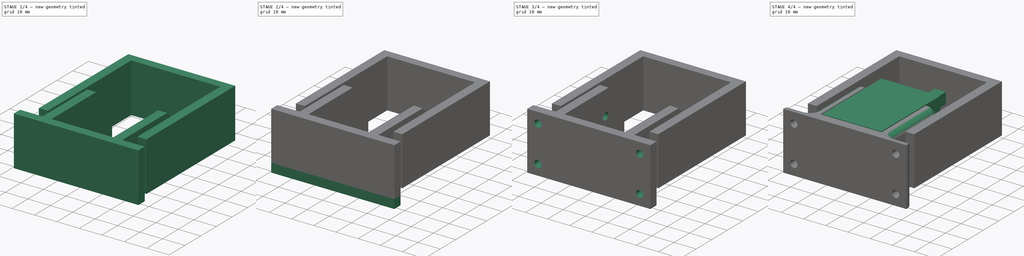
[diagram: build sequence overview — one tinted view per stage of 4, left to right]
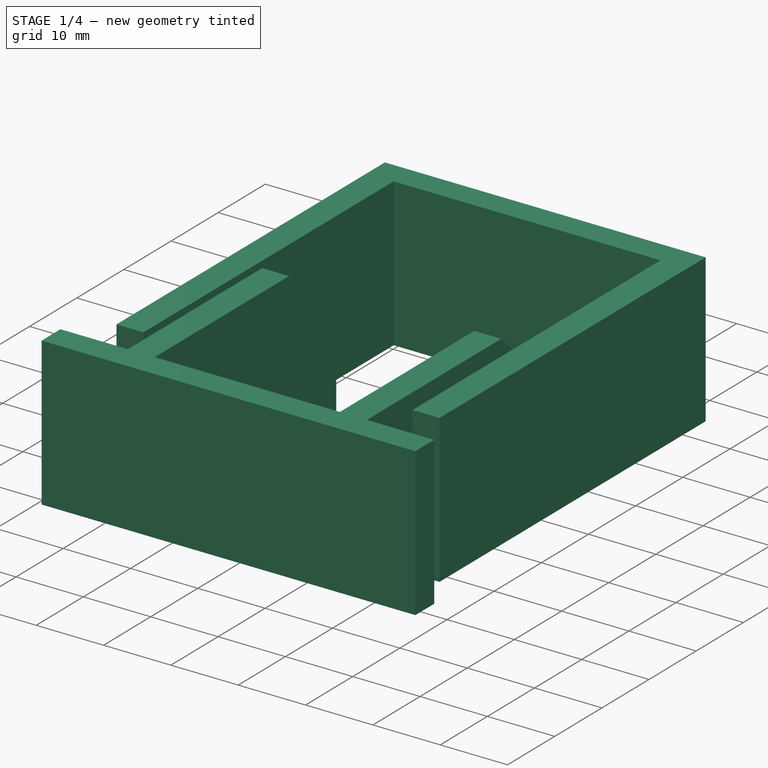
[diagram: stage 1 of 4 — iso view after this stage's code; geometry added in this stage tinted green]
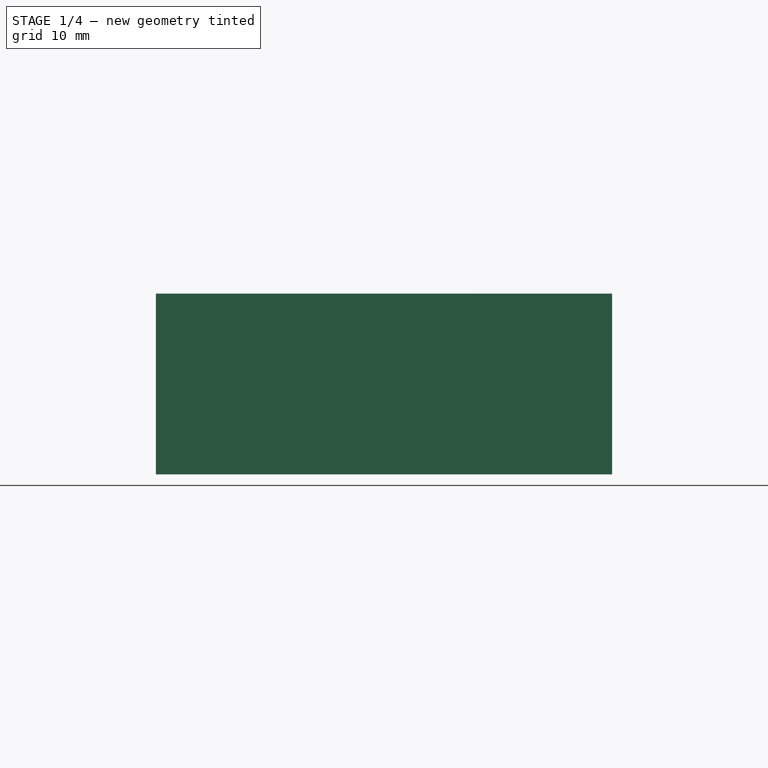
[diagram: stage 1 of 4 — front view after this stage's code; geometry added in this stage tinted green]
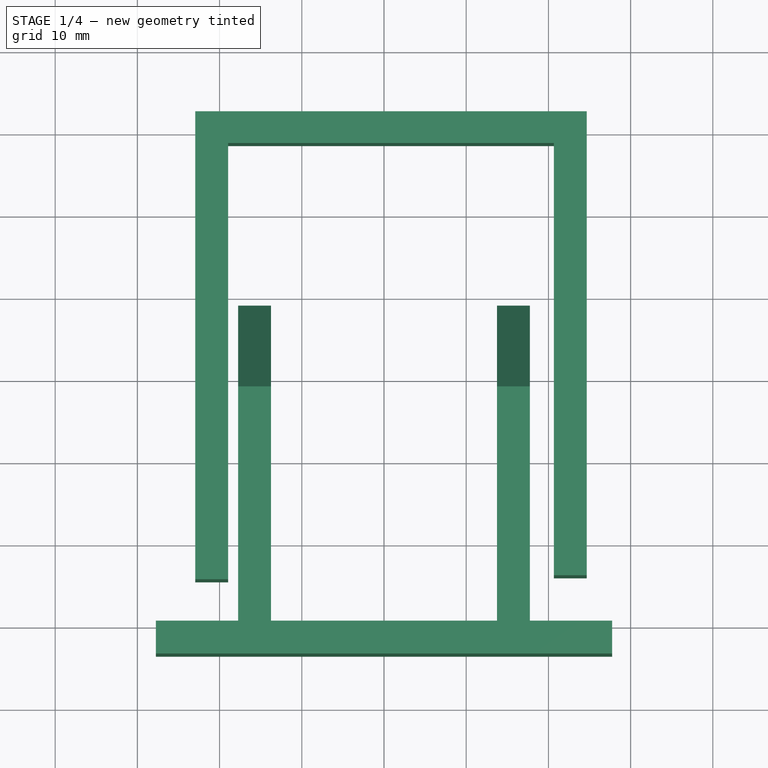
[diagram: stage 1 of 4 — top view after this stage's code; geometry added in this stage tinted green]
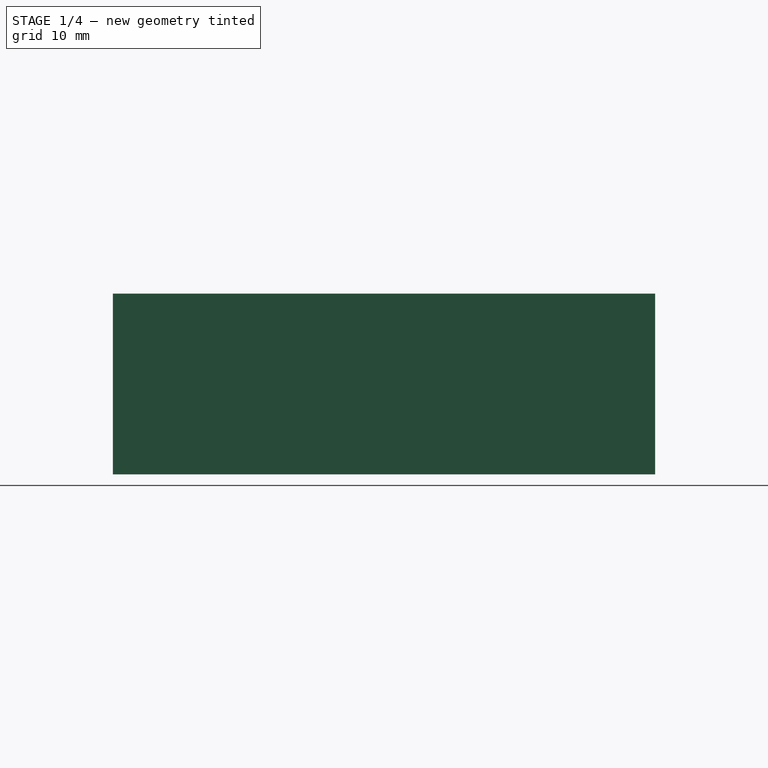
[diagram: stage 1 of 4 — right view after this stage's code; geometry added in this stage tinted green]
FCSTD DOCUMENT  (FreeCAD 0.19R22756 (Git))
Label: system-solenoid
License: All rights reserved
LicenseURL: http://en.wikipedia.org/wiki/All_rights_reserved
objects: Sketcher::SketchObject×7, PartDesign::Pad×7, PartDesign::Pocket×3, PartDesign::Body×3, Spreadsheet::Sheet×1, PartDesign::Fillet×1
note: 32 computed .brp shape members not serialized (recipe doc carries the construction recipe); baked Part::Feature solids carry a one-line shape summary decoded from their .brp

FEATURE [Sketcher::SketchObject] Sketch002
  MapMode = 5
  Support = -> [XY_Plane001]
  expr: Constraints[39] = Spreadsheet.solenoid_length / 2 + Spreadsheet.holder_margin
  expr: Constraints[35] = Spreadsheet.solenoid_length + Spreadsheet.holder_margin
  expr: Constraints[32] = Spreadsheet.holder_surface_width
  expr: Constraints[21] = Spreadsheet.holder_thickness
  expr: Constraints[30] = Spreadsheet.solenoid_width + Spreadsheet.holder_margin * 2
  sketch-geometry (14):
    g0: LineSegment StartX=-13.75 StartY=19 StartZ=0 EndX=-13.75 EndY=-19.5 EndZ=0
    g1: LineSegment StartX=-13.75 StartY=-19.5 StartZ=0 EndX=13.75 EndY=-19.5 EndZ=0
    g2: LineSegment StartX=13.75 StartY=-19.5 StartZ=0 EndX=13.75 EndY=19 EndZ=0
    g3: LineSegment StartX=13.75 StartY=19 StartZ=0 EndX=17.75 EndY=19 EndZ=0
    g4: LineSegment StartX=17.75 StartY=19 StartZ=0 EndX=17.75 EndY=-19.5 EndZ=0
    g5: LineSegment StartX=17.75 StartY=-19.5 StartZ=0 EndX=27.75 EndY=-19.5 EndZ=0
    g6: LineSegment StartX=27.75 StartY=-19.5 StartZ=0 EndX=27.75 EndY=-23.5 EndZ=0
    g7: LineSegment StartX=27.75 StartY=-23.5 StartZ=0 EndX=-27.75 EndY=-23.5 EndZ=0
    g8: LineSegment StartX=-27.75 StartY=-23.5 StartZ=0 EndX=-27.75 EndY=-19.5 EndZ=0
    g9: LineSegment StartX=-27.75 StartY=-19.5 StartZ=0 EndX=-17.75 EndY=-19.5 EndZ=0
    g10: LineSegment StartX=-17.75 StartY=-19.5 StartZ=0 EndX=-17.75 EndY=19 EndZ=0
    g11: LineSegment StartX=-17.75 StartY=19 StartZ=0 EndX=-13.75 EndY=19 EndZ=0
    g12: LineSegment [constr] StartX=-7.58307 StartY=-19.5 StartZ=0 EndX=-7.58307 EndY=-23.5 EndZ=0
    g13: LineSegment [constr] StartX=5.2175 StartY=-19.5 StartZ=0 EndX=5.2175 EndY=0 EndZ=0
  constraints (41):
    c: Vertical(g0)
    c: Coincident(g0,g1)
    c: Coincident(g1,g2)
    c: Vertical(g2)
    c: Coincident(g2,g3)
    c: Coincident(g3,g4)
    c: Vertical(g4)
    c: Horizontal(g5)
    c: Coincident(g5,g6)
    c: Vertical(g6)
    c: Coincident(g6,g7)
    c: Horizontal(g7)
    c: Coincident(g7,g8)
    c: Vertical(g8)
    c: Coincident(g8,g9)
    c: Vertical(g10)
    c: Coincident(g10,g11)
    c: Coincident(g11,g0)
    c: Horizontal(g11)
    c: Coincident(g9,g10)
    c: Coincident(g5,g4)
    c: DistanceX(g11,g11) = 4
    c: Equal(g11,g3)
    c: Equal(g11,g8)
    c: Equal(g6,g11)
    c: Horizontal(g9)
    c: PointOnObject(g12,g1)
    c: PointOnObject(g12,g7)
    c: Vertical(g12)
    c: Equal(g12,g8)
    c: DistanceX(g1,g1) = 27.5
    c: Symmetric(g0,g1,g-2)
    c: DistanceX(g9,g9) = 10
    c: Equal(g5,g9)
    c: Horizontal(g3)
    c: DistanceY(g10,g10) = 38.5
    c: Equal(g10,g2)
    c: PointOnObject(g13,g1)
    c: Vertical(g13)
    c: DistanceY(g13,g13) = 19.5
    c: PointOnObject(g13,g-1)
FEATURE [PartDesign::Pad] Pad001
  Direction = (1,1,1)
  Length = 22
  Length2 = 100
  Profile = -> Sketch002
  Type = 0
  expr: Length = Spreadsheet.solenoid_height
FEATURE [Sketcher::SketchObject] Sketch003
  ExternalGeometry = -> [Pad001]
  MapMode = 5
  Placement = pos=(17.75,0,0) rot=(0.57735,0.57735,0.57735;2.0944rad)
  Support = -> [Pad001]
  sketch-geometry (3):
    g0: LineSegment StartX=19 StartY=12 StartZ=0 EndX=9 EndY=22 EndZ=0
    g1: LineSegment StartX=9 StartY=22 StartZ=0 EndX=19 EndY=22 EndZ=0
    g2: LineSegment StartX=19 StartY=22 StartZ=0 EndX=19 EndY=12 EndZ=0
  constraints (9):
    c: Coincident(g0,g1)
    c: Horizontal(g1)
    c: Coincident(g1,g2)
    c: Vertical(g2)
    c: PointOnObject(g0,g-4)
    c: PointOnObject(g0,g-3)
    c: Coincident(g2,g0)
    c: DistanceX(g1,g1) = 10
    c: Equal(g1,g2)
FEATURE [PartDesign::Pocket] Pocket001
  BaseFeature = -> Pad001
  Length = 5
  Length2 = 100
  Profile = -> Sketch003
  Type = 1
FEATURE [PartDesign::Body] Body001  label="holder"
  Group = -> [Sketch002,Pad001,Sketch003,Pocket001,Pad002,Pad003,Pad004,Sketch007,Pocket,Sketch008,Pocket002,Fillet]
  Origin = -> Origin001
  Tip = -> Fillet
FEATURE [Sketcher::SketchObject] Sketch009
  MapMode = 5
  Support = -> [XY_Plane002]
  expr: Constraints[16] = Spreadsheet.holder_thickness
  sketch-geometry (8):
    g0: LineSegment StartX=-18.9655 StartY=-14.4582 StartZ=0 EndX=-18.9655 EndY=38.6192 EndZ=0
    g1: LineSegment StartX=-18.9655 StartY=38.6192 StartZ=0 EndX=20.6687 EndY=38.6192 EndZ=0
    g2: LineSegment StartX=20.6687 StartY=38.6192 StartZ=0 EndX=20.6687 EndY=-13.9771 EndZ=0
    g3: LineSegment StartX=20.6687 StartY=-13.9771 StartZ=0 EndX=24.6687 EndY=-13.9771 EndZ=0
    g4: LineSegment StartX=24.6687 StartY=-13.9771 StartZ=0 EndX=24.6687 EndY=42.4677 EndZ=0
    g5: LineSegment StartX=24.6687 StartY=42.4677 StartZ=0 EndX=-22.9655 EndY=42.4677 EndZ=0
    g6: LineSegment StartX=-22.9655 StartY=42.4677 StartZ=0 EndX=-22.9655 EndY=-14.4582 EndZ=0
    g7: LineSegment StartX=-22.9655 StartY=-14.4582 StartZ=0 EndX=-18.9655 EndY=-14.4582 EndZ=0
  constraints (18):
    c: Vertical(g0)
    c: Coincident(g0,g1)
    c: Horizontal(g1)
    c: Coincident(g1,g2)
    c: Vertical(g2)
    c: Coincident(g2,g3)
    c: Horizontal(g3)
    c: Coincident(g3,g4)
    c: Vertical(g4)
    c: Coincident(g4,g5)
    c: Horizontal(g5)
    c: Coincident(g5,g6)
    c: Vertical(g6)
    c: Coincident(g6,g7)
    c: Coincident(g7,g0)
    c: Horizontal(g7)
    c: DistanceX(g7,g7) = 4
    c: Equal(g3,g7)
FEATURE [PartDesign::Pad] Pad006
  Direction = (1,1,1)
  Length = 22
  Length2 = 100
  Profile = -> Sketch009
  Type = 0
  expr: Length = Spreadsheet.solenoid_height
FEATURE [PartDesign::Body] Body002
  Group = -> [Sketch009,Pad006]
  Origin = -> Origin002
  Tip = -> Pad006
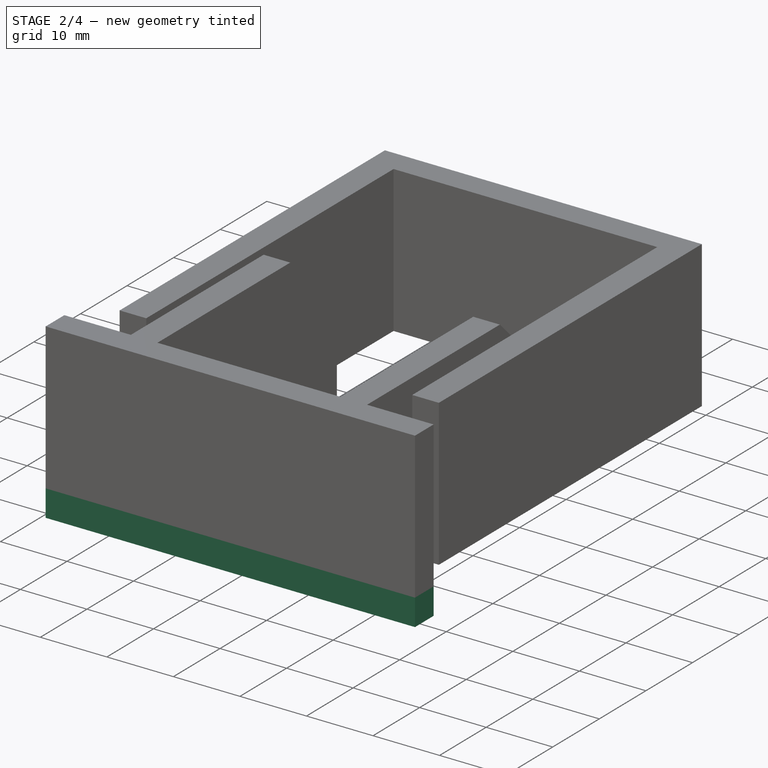
[diagram: stage 2 of 4 — iso view after this stage's code; geometry added in this stage tinted green]
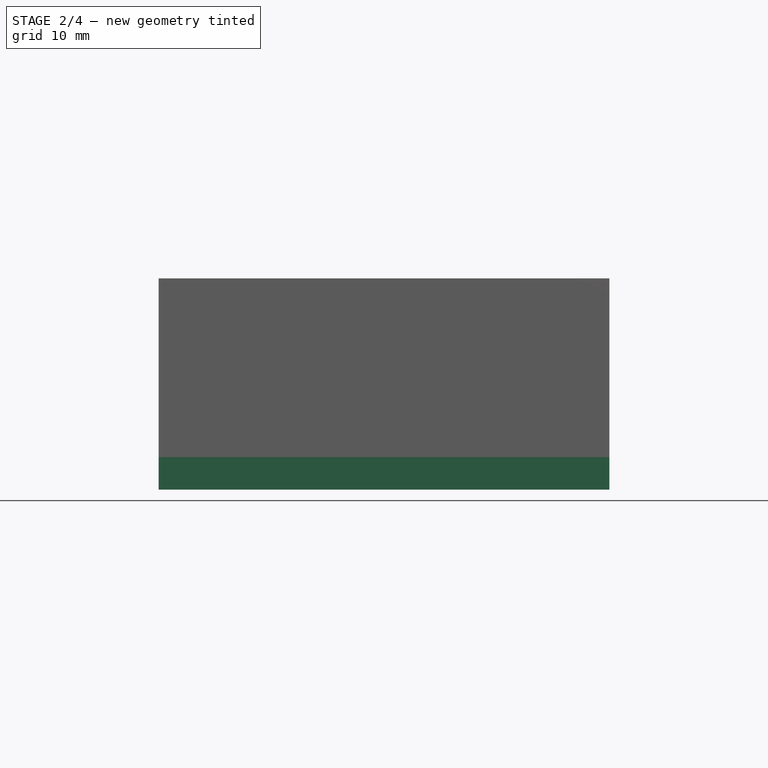
[diagram: stage 2 of 4 — front view after this stage's code; geometry added in this stage tinted green]
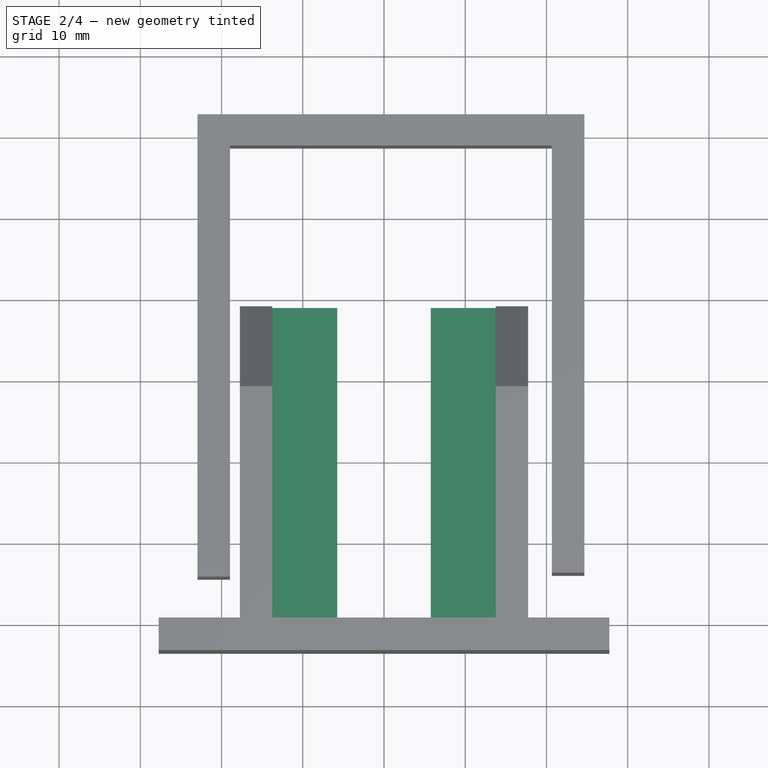
[diagram: stage 2 of 4 — top view after this stage's code; geometry added in this stage tinted green]
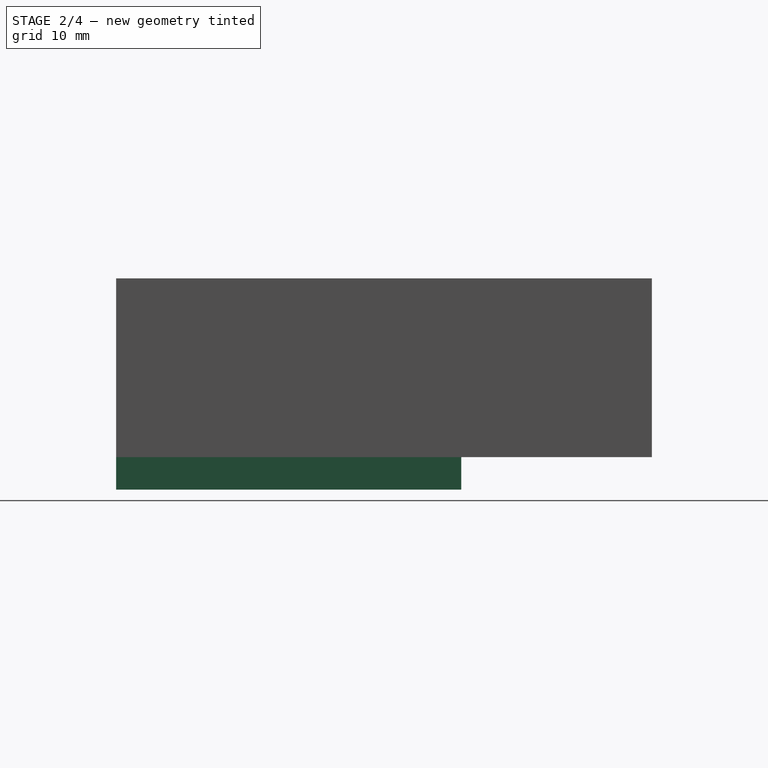
[diagram: stage 2 of 4 — right view after this stage's code; geometry added in this stage tinted green]
FEATURE [PartDesign::Pad] Pad002
  BaseFeature = -> Pocket001
  Direction = (1,1,1)
  Length = 4
  Length2 = 100
  Profile = -> Pocket001 [Face2]
  Type = 0
  expr: Length = Spreadsheet.holder_thickness
FEATURE [PartDesign::Pad] Pad003
  BaseFeature = -> Pad002
  Direction = (1,1,1)
  Length = 8
  Length2 = 100
  Profile = -> Pad002 [Face20]
  Type = 0
  expr: Length = Spreadsheet.holder_thickness * 2
FEATURE [PartDesign::Pad] Pad004
  BaseFeature = -> Pad003
  Direction = (1,1,1)
  Length = 8
  Length2 = 100
  Profile = -> Pad003 [Face2]
  Type = 0
  expr: Length = Spreadsheet.holder_thickness * 2
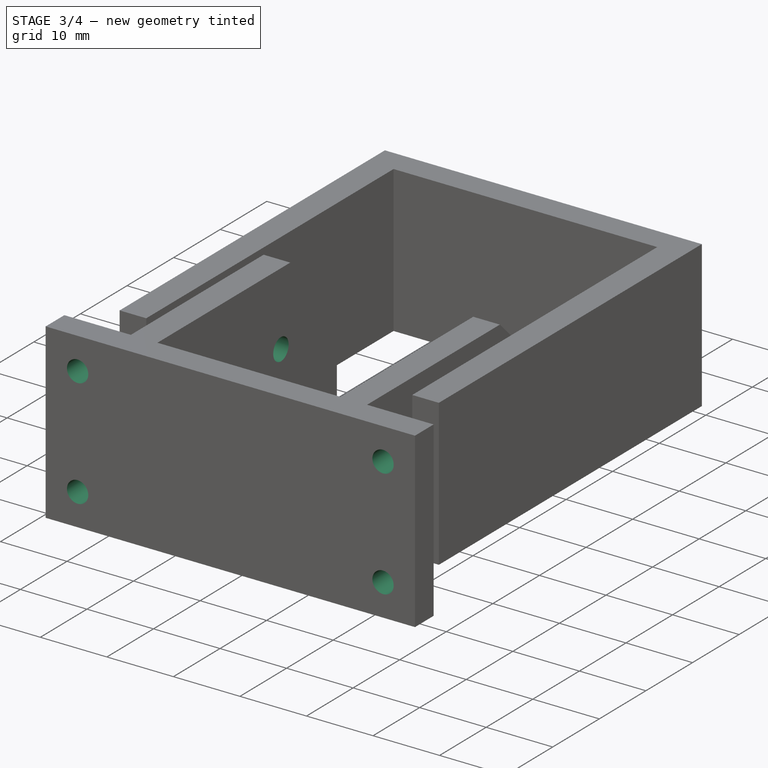
[diagram: stage 3 of 4 — iso view after this stage's code; geometry added in this stage tinted green]
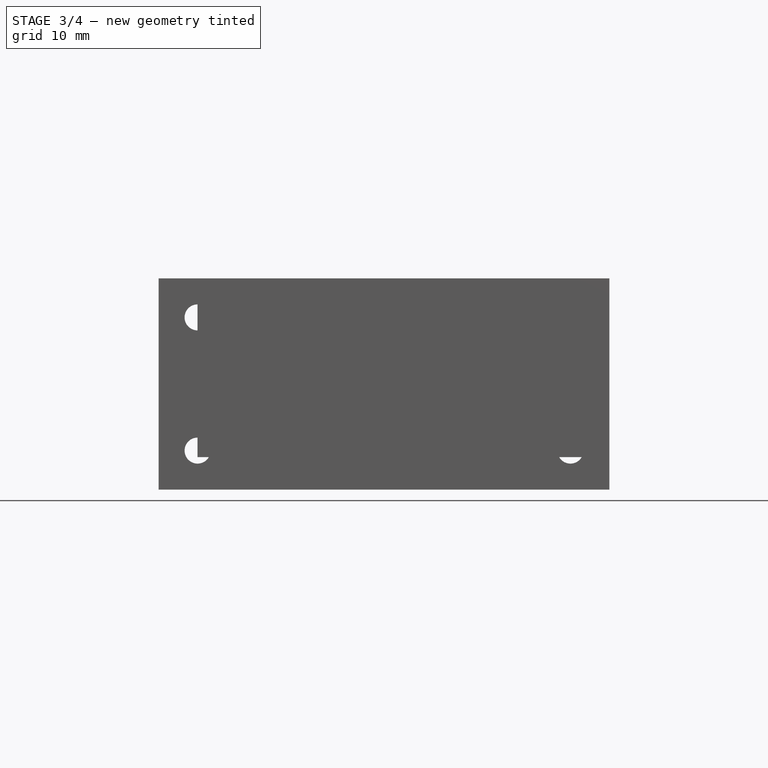
[diagram: stage 3 of 4 — front view after this stage's code; geometry added in this stage tinted green]
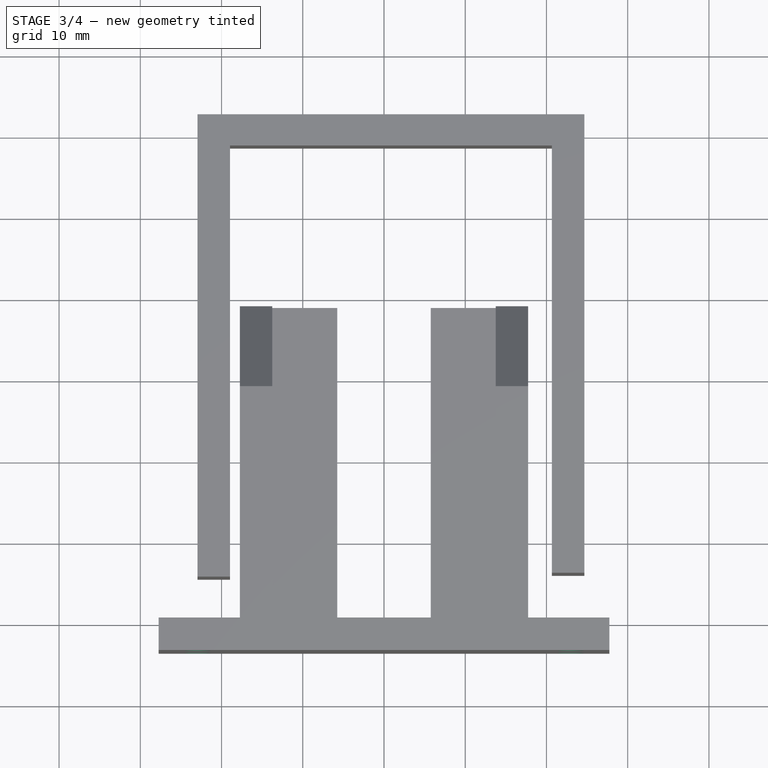
[diagram: stage 3 of 4 — top view after this stage's code; geometry added in this stage tinted green]
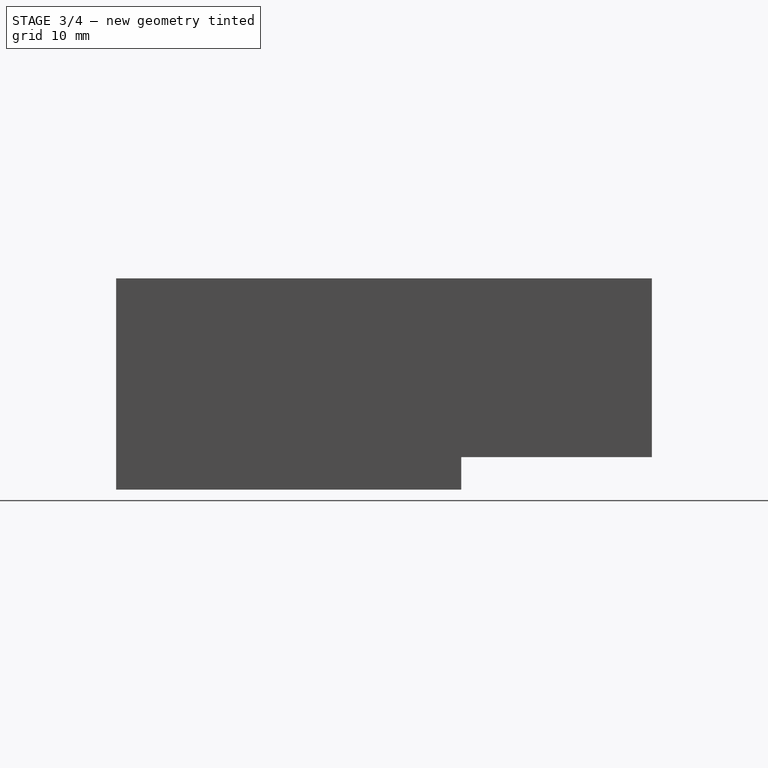
[diagram: stage 3 of 4 — right view after this stage's code; geometry added in this stage tinted green]
FEATURE [PartDesign::Body] Body  label="solenoid"
  Group = -> [Sketch,Pad,Sketch006,Pad005]
  Origin = -> Origin
  Tip = -> Pad005
FEATURE [Sketcher::SketchObject] Sketch007
  ExternalGeometry = -> [Pad004]
  MapMode = 5
  Placement = pos=(0,-23.5,0) rot=(1,0,0;1.5708rad)
  Support = -> [Pad004]
  expr: Constraints[7] = Spreadsheet.holder_holes_dia * 1.5
  expr: Constraints[0] = Spreadsheet.holder_holes_dia
  sketch-geometry (14):
    g0: Circle CenterX=-22.95 CenterY=17.2 CenterZ=0 NormalX=0 NormalY=0 NormalZ=1 AngleXU=0 Radius=1.6
    g1: LineSegment [constr] StartX=-22.95 StartY=17.2 StartZ=0 EndX=-27.75 EndY=17.2 EndZ=0
    g2: LineSegment [constr] StartX=-22.95 StartY=17.2 StartZ=0 EndX=-22.95 EndY=22 EndZ=0
    g3: Circle CenterX=-22.95 CenterY=0.8 CenterZ=0 NormalX=0 NormalY=0 NormalZ=1 AngleXU=0 Radius=1.6
    g4: Circle CenterX=22.95 CenterY=17.2 CenterZ=0 NormalX=0 NormalY=0 NormalZ=1 AngleXU=0 Radius=1.6
    g5: Circle CenterX=22.95 CenterY=0.8 CenterZ=0 NormalX=0 NormalY=0 NormalZ=1 AngleXU=0 Radius=1.6
    g6: LineSegment [constr] StartX=-22.95 StartY=0.8 StartZ=0 EndX=-27.75 EndY=0.8 EndZ=0
    g7: LineSegment [constr] StartX=-22.95 StartY=0.8 StartZ=0 EndX=-22.95 EndY=-4 EndZ=0
    g8: LineSegment [constr] StartX=22.95 StartY=0.8 StartZ=0 EndX=22.95 EndY=-4 EndZ=0
    g9: LineSegment [constr] StartX=22.95 StartY=0.8 StartZ=0 EndX=27.75 EndY=0.8 EndZ=0
    g10: LineSegment [constr] StartX=22.95 StartY=17.2 StartZ=0 EndX=27.75 EndY=17.2 EndZ=0
    g11: LineSegment [constr] StartX=22.95 StartY=17.2 StartZ=0 EndX=22.95 EndY=22 EndZ=0
    g12: LineSegment [constr] StartX=-22.95 StartY=17.2 StartZ=0 EndX=22.95 EndY=17.2 EndZ=0
    g13: LineSegment [constr] StartX=-22.95 StartY=17.2 StartZ=0 EndX=-22.95 EndY=0.8 EndZ=0
  constraints (40):
    c: Diameter(g0) = 3.2
    c: Coincident(g1,g0)
    c: PointOnObject(g1,g-4)
    c: Horizontal(g1)
    c: Coincident(g2,g0)
    c: PointOnObject(g2,g-3)
    c: Vertical(g2)
    c: DistanceY(g2,g2) = 4.8
    c: Equal(g1,g2)
    c: Coincident(g6,g3)
    c: PointOnObject(g6,g-4)
    c: Horizontal(g6)
    c: Coincident(g7,g3)
    c: PointOnObject(g7,g-6)
    c: Vertical(g7)
    c: Coincident(g8,g5)
    c: PointOnObject(g8,g-6)
    c: Coincident(g9,g5)
    c: PointOnObject(g9,g-5)
    c: Horizontal(g9)
    c: Coincident(g10,g4)
    c: PointOnObject(g10,g-5)
    c: Horizontal(g10)
    c: Coincident(g11,g4)
    c: PointOnObject(g11,g-3)
    c: Vertical(g11)
    c: Vertical(g8)
    c: Equal(g0,g3)
    c: Equal(g3,g4)
    c: Equal(g4,g5)
    c: Equal(g2,g6)
    c: Equal(g6,g7)
    c: Equal(g7,g11)
    c: Equal(g11,g10)
    c: Equal(g10,g9)
    c: Equal(g9,g8)
    c: Coincident(g12,g0)
    c: Coincident(g12,g4)
    c: Coincident(g13,g0)
    c: Coincident(g13,g3)
FEATURE [PartDesign::Pocket] Pocket
  BaseFeature = -> Pad004
  Length = 5
  Length2 = 100
  Profile = -> Sketch007
  Type = 1
FEATURE [Sketcher::SketchObject] Sketch008
  ExternalGeometry = -> [Pocket]
  MapMode = 5
  Placement = pos=(17.75,0,0) rot=(0.57735,0.57735,0.57735;2.0944rad)
  Support = -> [Pocket]
  expr: Constraints[9] = Spreadsheet.solenoid_holes_2_offset
  expr: Constraints[8] = Spreadsheet.solenoid_holes_1_offset
  expr: Constraints[2] = Spreadsheet.solenoid_holes_height
  expr: Constraints[0] = Spreadsheet.solenoid_holes_dia
  sketch-geometry (4):
    g0: Circle CenterX=7 CenterY=11 CenterZ=0 NormalX=0 NormalY=0 NormalZ=1 AngleXU=0 Radius=1.65
    g1: Circle CenterX=-7 CenterY=11 CenterZ=0 NormalX=0 NormalY=0 NormalZ=1 AngleXU=0 Radius=1.65
    g2: LineSegment [constr] StartX=7 StartY=11 StartZ=0 EndX=7 EndY=0 EndZ=0
    g3: LineSegment [constr] StartX=-7 StartY=11 StartZ=0 EndX=-7 EndY=0 EndZ=0
  constraints (12):
    c: Diameter(g0) = 3.3
    c: Equal(g1,g0)
    c: DistanceY(g3,g3) = 11
    c: Equal(g3,g2)
    c: Coincident(g3,g1)
    c: Coincident(g0,g2)
    c: Vertical(g2)
    c: Vertical(g3)
    c: DistanceX(g2,g-4) = 12
    c: DistanceX(g3,g-4) = 26
    c: PointOnObject(g2,g-1)
    c: PointOnObject(g3,g-1)
FEATURE [PartDesign::Pocket] Pocket002
  BaseFeature = -> Pocket
  Length = 5
  Length2 = 100
  Profile = -> Sketch008
  Type = 1
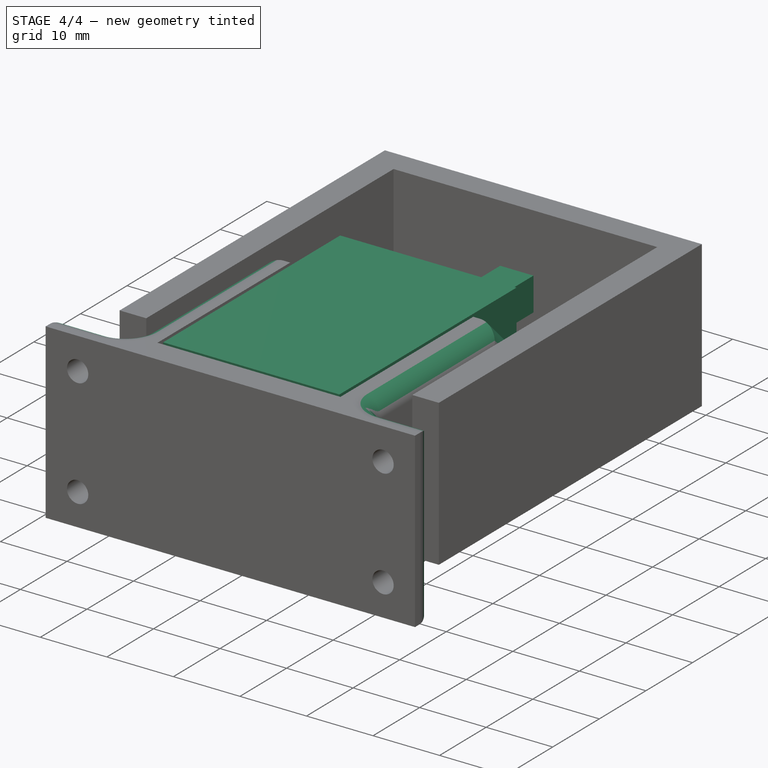
[diagram: stage 4 of 4 — iso view after this stage's code; geometry added in this stage tinted green]
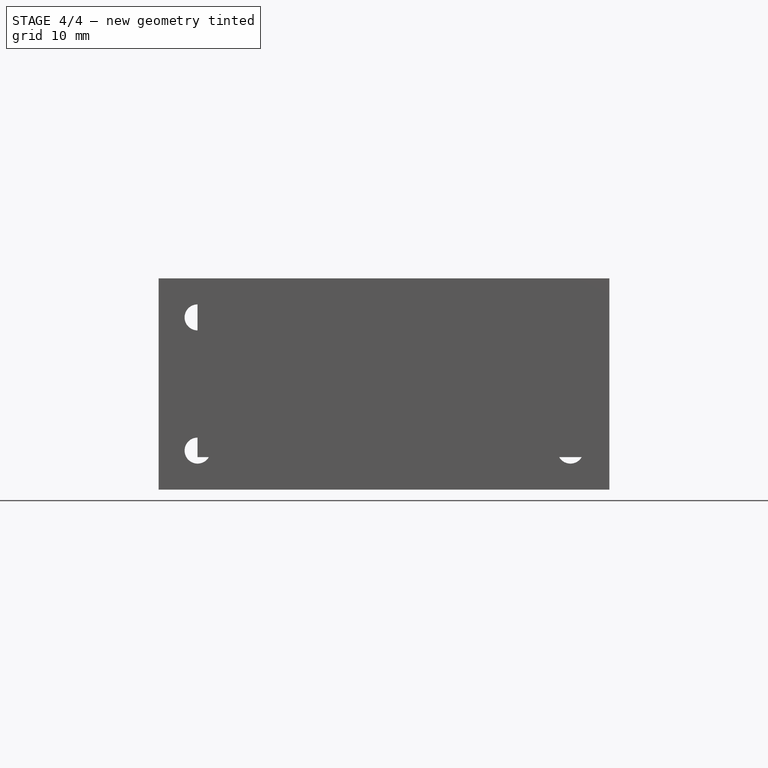
[diagram: stage 4 of 4 — front view after this stage's code; geometry added in this stage tinted green]
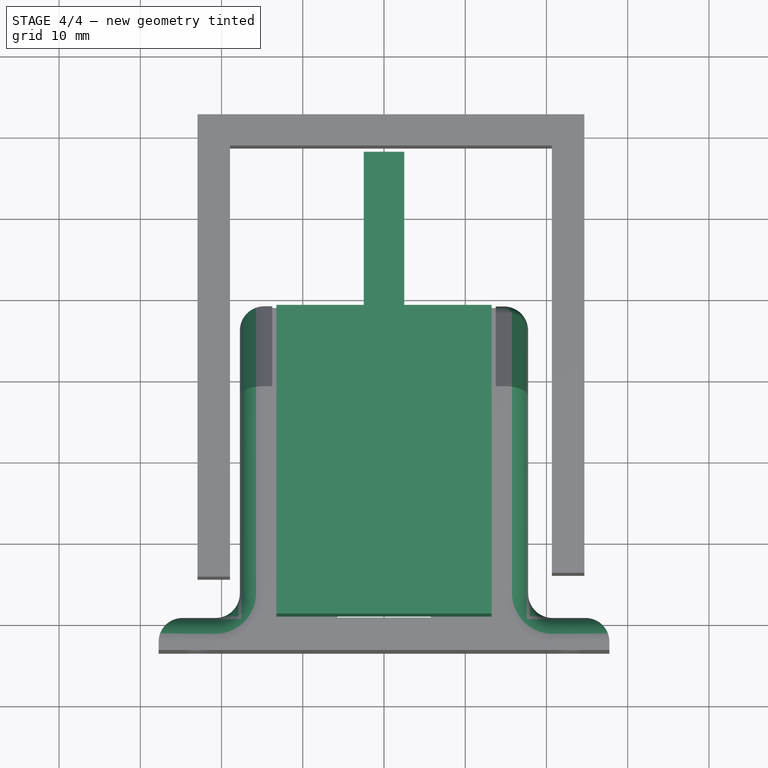
[diagram: stage 4 of 4 — top view after this stage's code; geometry added in this stage tinted green]
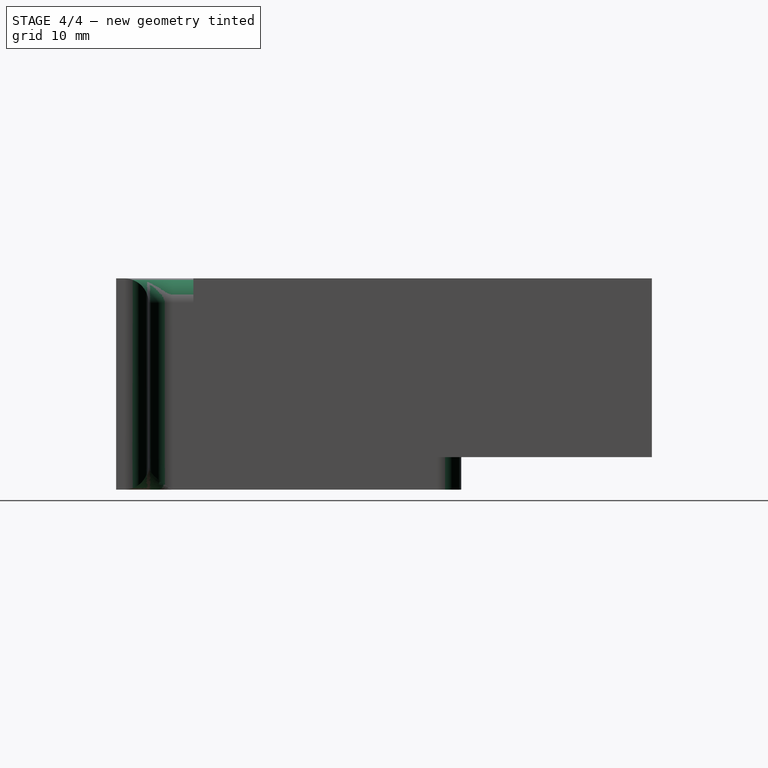
[diagram: stage 4 of 4 — right view after this stage's code; geometry added in this stage tinted green]
FEATURE [Spreadsheet::Sheet] Spreadsheet
  cells = A1=solenoid_width; B1(solenoid_width)==26.5mm; A2=solenoid_height; B2(solenoid_height)==22mm; A3=solenoid_length; B3(solenoid_length)==38mm; A4=solenoid_holes_height; B4(solenoid_holes_height)==11mm; A5=solenoid_holes_dia; B5(solenoid_holes_dia)==3.3mm; A6=solenoid_holes_1_offset; B6(solenoid_holes_1_offset)==12mm; A7=solenoid_holes_2_offset; B7(solenoid_holes_2_offset)==26mm; A8=holder_thickness; B8(holder_thickness)==4mm; A9=holder_surface_width; B9(holder_surface_width)==10mm; A10=holder_margin; B10(holder_margin)==0.5mm; A11=holder_holes_dia; B11(holder_holes_dia)==3.2mm; A12=holder_filet; B12(holder_filet)==3mm; A13=solenoid_max_push; B13(solenoid_max_push)==20mm
FEATURE [Sketcher::SketchObject] Sketch
  MapMode = 5
  Support = -> [XY_Plane]
  expr: Constraints[6] = Spreadsheet.solenoid_width
  expr: Constraints[7] = Spreadsheet.solenoid_length
  sketch-geometry (4):
    g0: LineSegment StartX=-13.25 StartY=19 StartZ=0 EndX=13.25 EndY=19 EndZ=0
    g1: LineSegment StartX=13.25 StartY=19 StartZ=0 EndX=13.25 EndY=-19 EndZ=0
    g2: LineSegment StartX=13.25 StartY=-19 StartZ=0 EndX=-13.25 EndY=-19 EndZ=0
    g3: LineSegment StartX=-13.25 StartY=-19 StartZ=0 EndX=-13.25 EndY=19 EndZ=0
  constraints (10):
    c: Coincident(g0,g1)
    c: Coincident(g1,g2)
    c: Coincident(g2,g3)
    c: Coincident(g3,g0)
    c: Horizontal(g0)
    c: Vertical(g1)
    c: DistanceX(g2,g2) = 26.5
    c: DistanceY(g3,g3) = 38
    c: Symmetric(g2,g1,g-2)
    c: Symmetric(g0,g2,g-1)
FEATURE [PartDesign::Pad] Pad
  Direction = (1,1,1)
  Length = 22
  Length2 = 100
  Profile = -> Sketch
  Type = 0
  expr: Length = Spreadsheet.solenoid_height
FEATURE [Sketcher::SketchObject] Sketch006
  MapMode = 5
  Placement = pos=(0,18,0) rot=(0,0.707107,0.707107;3.14159rad)
  sketch-geometry (5):
    g0: LineSegment StartX=-2.5 StartY=13.5 StartZ=0 EndX=2.5 EndY=13.5 EndZ=0
    g1: LineSegment StartX=2.5 StartY=13.5 StartZ=0 EndX=2.5 EndY=8.5 EndZ=0
    g2: LineSegment StartX=2.5 StartY=8.5 StartZ=0 EndX=-2.5 EndY=8.5 EndZ=0
    g3: LineSegment StartX=-2.5 StartY=8.5 StartZ=0 EndX=-2.5 EndY=13.5 EndZ=0
    g4: LineSegment [constr] StartX=-13.25 StartY=11 StartZ=0 EndX=0 EndY=11 EndZ=0
  constraints (11):
    c: Coincident(g0,g1)
    c: Coincident(g1,g2)
    c: Coincident(g2,g3)
    c: Coincident(g3,g0)
    c: Horizontal(g0)
    c: Vertical(g1)
    c: DistanceX(g0,g0) = 5
    c: DistanceY(g3,g3) = 5
    c: Symmetric(g1,g2,g-2)
    c: PointOnObject(g4,g-2)
    c: Symmetric(g2,g0,g4)
FEATURE [PartDesign::Pad] Pad005
  BaseFeature = -> Pad
  Direction = (1,1,1)
  Length = 20
  Length2 = 100
  Profile = -> Sketch006
  Type = 0
  expr: Length = Spreadsheet.solenoid_max_push
FEATURE [PartDesign::Fillet] Fillet
  Base = -> Pocket002 [Edge70,Edge71,Edge26,Edge82,Edge25,Edge83,Edge20,Edge21,Edge41,Edge51,Edge19,Edge13,Edge78,Edge87,Edge79,Edge69,Edge55,Edge91,Edge95,Edge75,Edge74]
  BaseFeature = -> Pocket002
  Radius = 3
  SupportTransform = false
  expr: Radius = Spreadsheet.holder_filet
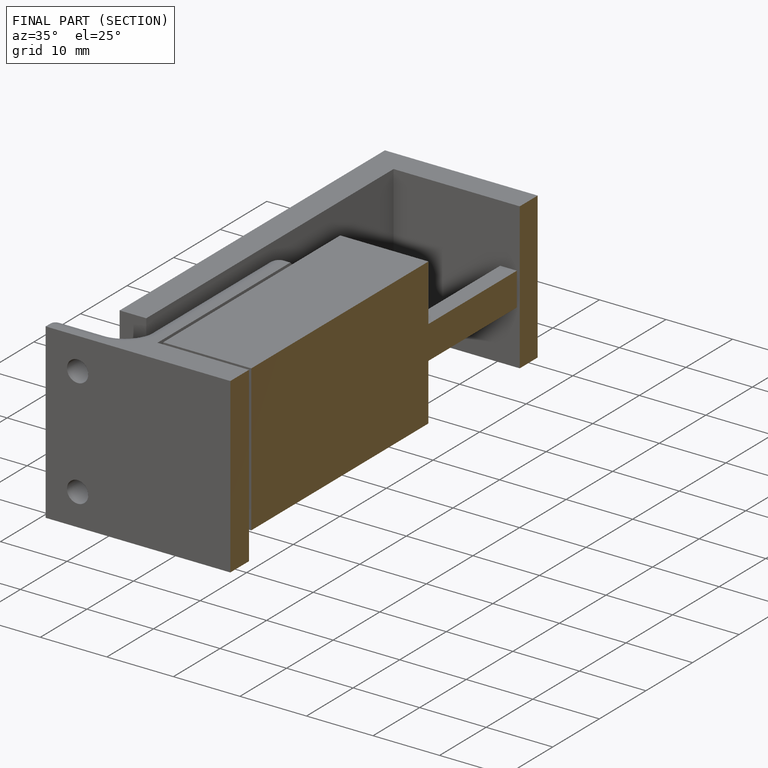
[diagram: finished part — half-section view (interior)]
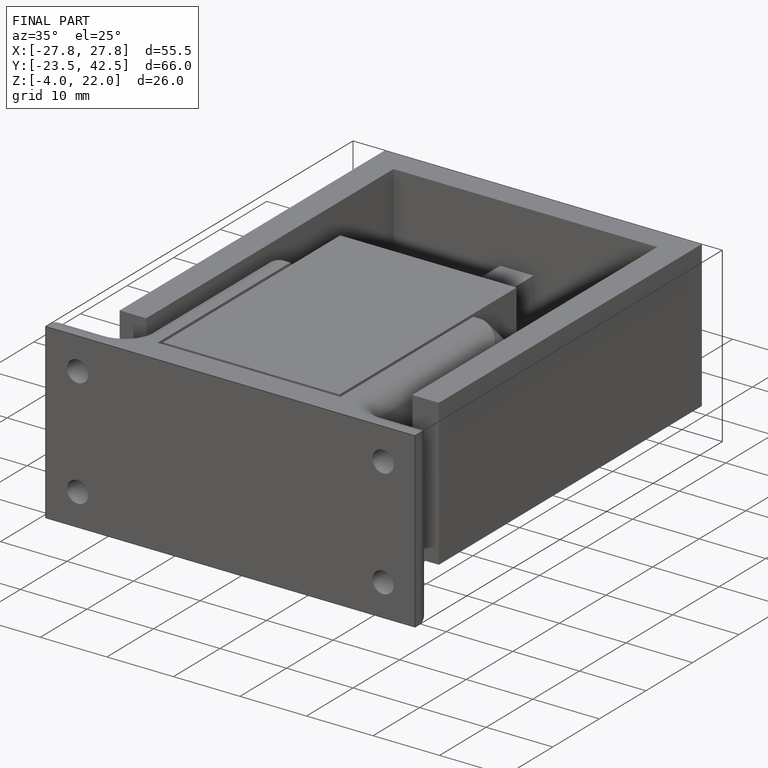
[diagram: finished part — iso view with bounding-box wireframe]
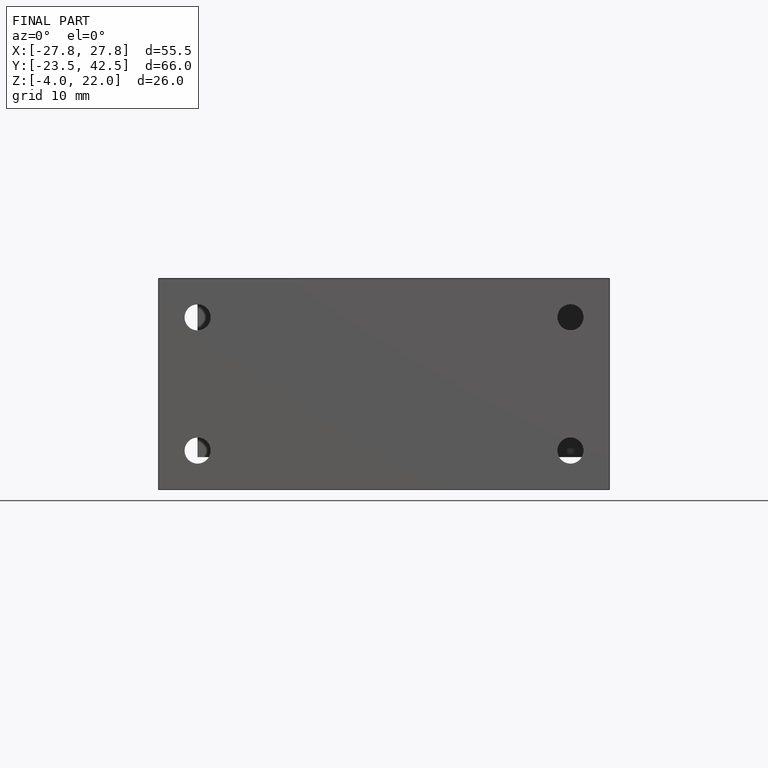
[diagram: finished part — front view with bounding-box wireframe]
